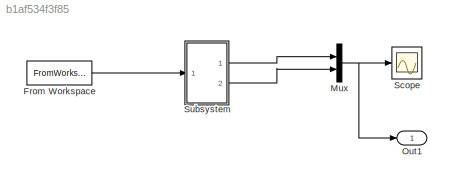
MODEL slx_b1af534f3f85
KIND model
BLOCK [FromWorkspace] From Workspace
  SampleTime = 0
  VariableName = input
  ZeroCross = on
BLOCK [Mux] Mux
  DisplayOption = bar
  Inputs = 2
  Ports = [2, 1]
BLOCK [Outport] Out1
  IconDisplay = Port number
BLOCK [Scope] Scope
  Floating = off
  NumInputPorts = 1
  Ports = [1]
  ShowLegends = off
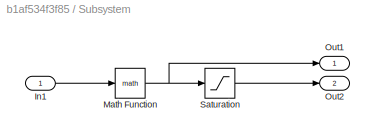
BLOCK [SubSystem] Subsystem
  Ports = [1, 2]
  RequestExecContextInheritance = off
BLOCK [Inport] Subsystem/In1
  IconDisplay = Port number
BLOCK [Math] Subsystem/Math Function
  Ports = [1, 1]
BLOCK [Outport] Subsystem/Out1
  IconDisplay = Port number
BLOCK [Outport] Subsystem/Out2
  IconDisplay = Port number
  Port = 2
BLOCK [Saturate] Subsystem/Saturation
  InputPortMap = u0
  LowerLimit = 0.5
  Ports = [1, 1]
  UpperLimit = 2
LINE From Workspace:1 -> Subsystem:1
NET Mux:1 -> Out1:1, Scope:1
LINE Subsystem/In1:1 -> Subsystem/Math Function:1
NET Subsystem/Math Function:1 -> Subsystem/Out1:1, Subsystem/Saturation:1
LINE Subsystem/Saturation:1 -> Subsystem/Out2:1
LINE Subsystem:1 -> Mux:1
LINE Subsystem:2 -> Mux:2
note: NET lines group one-source signal fan-out (src -> all destinations, sorted); 1:1 wires keep LINE
